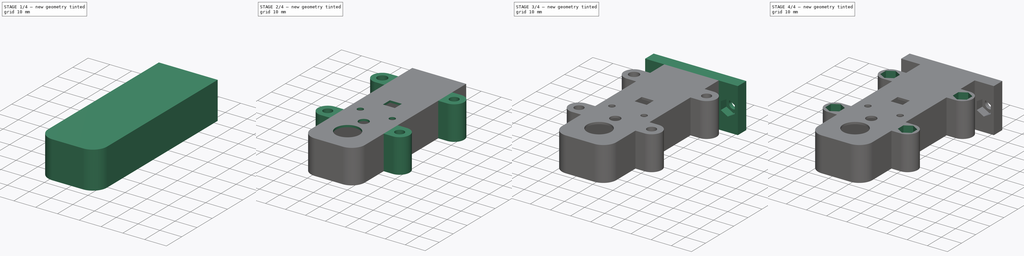
[diagram: build sequence overview — one tinted view per stage of 4, left to right]
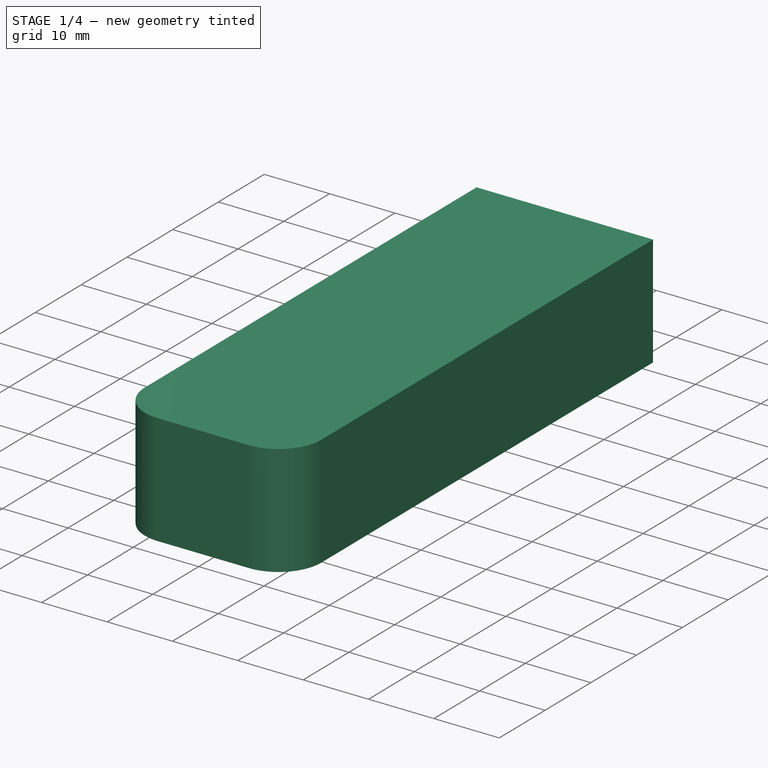
[diagram: stage 1 of 4 — iso view after this stage's code; geometry added in this stage tinted green]
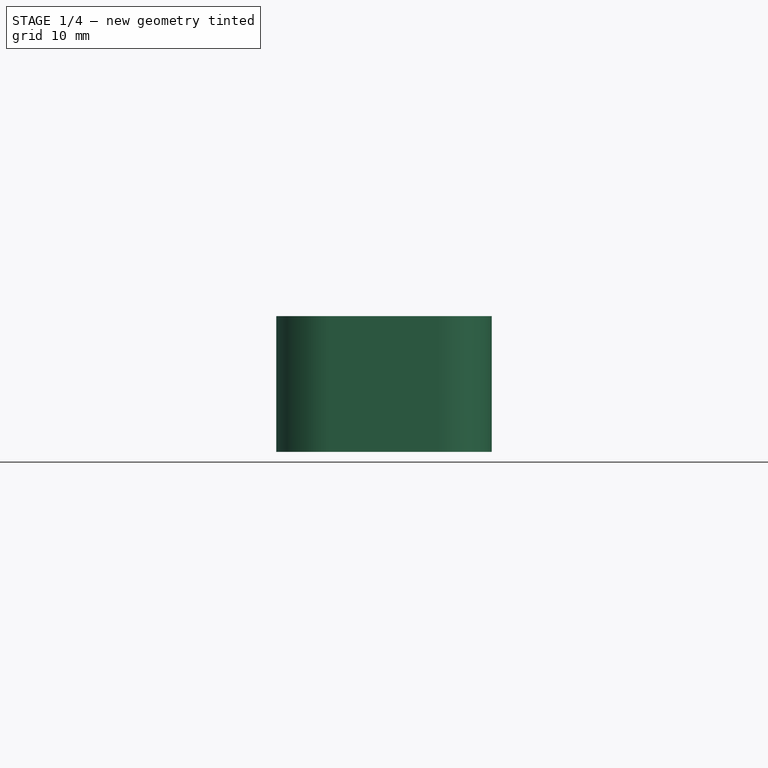
[diagram: stage 1 of 4 — front view after this stage's code; geometry added in this stage tinted green]
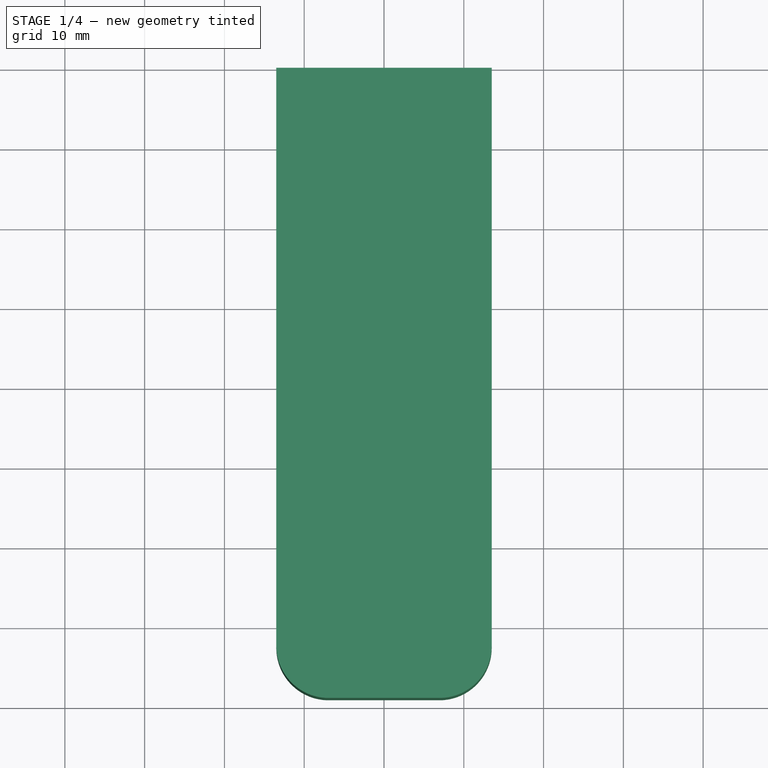
[diagram: stage 1 of 4 — top view after this stage's code; geometry added in this stage tinted green]
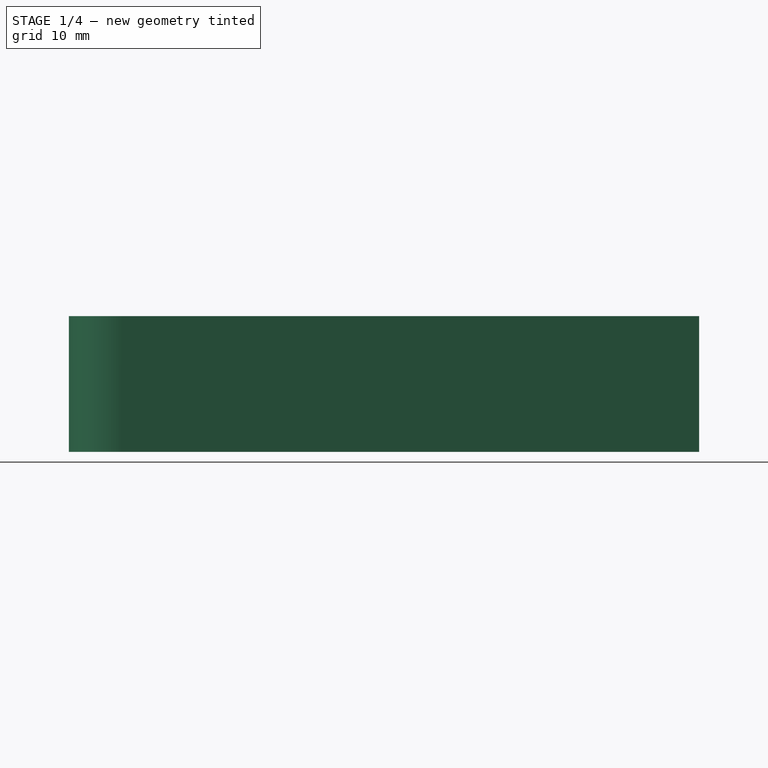
[diagram: stage 1 of 4 — right view after this stage's code; geometry added in this stage tinted green]
FCSTD DOCUMENT  (FreeCAD 1.0R38641 +678 (Git))
Label: box
License: All rights reserved
LicenseURL: https://en.wikipedia.org/wiki/All_rights_reserved
objects: Sketcher::SketchObject×10, PartDesign::Pocket×6, PartDesign::Pad×4, PartDesign::Body×1
note: 51 computed .brp shape members not serialized (recipe doc carries the construction recipe); baked Part::Feature solids carry a one-line shape summary decoded from their .brp

FEATURE [Sketcher::SketchObject] Sketch046
  ArcFitTolerance = 0
  AttachmentSupport = -> [XY_Plane007]
  FullyConstrained = true
  MakeInternals = false
  MapMode = 5
  sketch-geometry (12):
    g0: LineSegment StartX=11.5 StartY=-2 StartZ=0 EndX=11.5 EndY=-72 EndZ=0
    g1: LineSegment StartX=6.5 StartY=-77 StartZ=0 EndX=-6.5 EndY=-77 EndZ=0
    g2: LineSegment StartX=-11.5 StartY=-72 StartZ=0 EndX=-11.5 EndY=-2 EndZ=0
    g3: ArcOfCircle CenterX=-6.5 CenterY=-72 CenterZ=0 NormalX=0 NormalY=0 NormalZ=1 AngleXU=0 Radius=5 StartAngle=3.14159 EndAngle=4.71239
    g4: ArcOfCircle CenterX=6.5 CenterY=-72 CenterZ=0 NormalX=0 NormalY=0 NormalZ=1 AngleXU=0 Radius=5 StartAngle=4.71239 EndAngle=6.28319
    g5: LineSegment StartX=-13.5 StartY=0 StartZ=0 EndX=-13.5 EndY=-72.44 EndZ=0
    g6: LineSegment StartX=-6.94 StartY=-79 StartZ=0 EndX=6.94 EndY=-79 EndZ=0
    g7: LineSegment StartX=13.5 StartY=-72.44 StartZ=0 EndX=13.5 EndY=0 EndZ=0
    g8: ArcOfCircle CenterX=-6.94 CenterY=-72.44 CenterZ=0 NormalX=0 NormalY=0 NormalZ=1 AngleXU=0 Radius=6.56 StartAngle=3.14159 EndAngle=4.71239
    g9: ArcOfCircle CenterX=6.94 CenterY=-72.44 CenterZ=0 NormalX=0 NormalY=0 NormalZ=1 AngleXU=0 Radius=6.56 StartAngle=4.71239 EndAngle=6.28319
    g10: LineSegment StartX=-11.5 StartY=-2 StartZ=0 EndX=11.5 EndY=-2 EndZ=0
    g11: LineSegment StartX=13.5 StartY=0 StartZ=0 EndX=-13.5 EndY=0 EndZ=0
  constraints (32):
    c: Horizontal(g1)
    c: Vertical(g0)
    c: Vertical(g2)
    c: Distance(g-1,g2) = 11.5
    c: Tangent(g1,g3) = 1.5708
    c: Tangent(g2,g3) = 1.5708
    c: Distance(g-1,g1) = 77
    c: Tangent(g0,g4) = 1.5708
    c: Tangent(g1,g4) = 1.5708
    c: Radius(g4) = 5
    c: Equal(g4,g3)
    c: PointOnObject(g5,g-1)
    c: Vertical(g5)
    c: Horizontal(g6)
    c: PointOnObject(g7,g-1)
    c: Vertical(g7)
    c: Tangent(g5,g8) = -1.5708
    c: Tangent(g6,g8) = -1.5708
    c: Radius(g8) = 6.56
    c: Tangent(g7,g9) = -1.5708
    c: Tangent(g6,g9) = -1.5708
    c: Equal(g8,g9)
    c: Distance(g-1,g6) = 79
    c: Horizontal(g10)
    c: Coincident(g2,g10)
    c: Coincident(g0,g10)
    c: DistanceX(g10,g10) = 23
    c: Distance(g-1,g10) = 2
    c: Distance(g7,g5) = 27
    c: Distance(g2,g5) = 2
    c: Coincident(g7,g11)
    c: Coincident(g5,g11)
FEATURE [PartDesign::Pad] Pad018
  Direction = (0,0,1)
  Length = 16
  Length2 = 10
  Profile = -> Sketch046
  ReferenceAxis = -> Sketch046 [N_Axis]
  Suppressed = false
  Type = 0
FEATURE [Sketcher::SketchObject] Sketch047
  ArcFitTolerance = 0
  AttachmentSupport = -> [Pad018]
  FullyConstrained = true
  MakeInternals = false
  MapMode = 5
  Placement = pos=(0,0,16) rot=(0,0,1;0rad)
  sketch-geometry (6):
    g0: LineSegment StartX=-13.5 StartY=0 StartZ=0 EndX=13.5 EndY=0 EndZ=0
    g1: LineSegment StartX=13.5 StartY=0 StartZ=0 EndX=13.5 EndY=-72.44 EndZ=0
    g2: LineSegment StartX=6.94 StartY=-79 StartZ=0 EndX=-6.94 EndY=-79 EndZ=0
    g3: LineSegment StartX=-13.5 StartY=-72.44 StartZ=0 EndX=-13.5 EndY=0 EndZ=0
    g4: ArcOfCircle CenterX=-6.94 CenterY=-72.44 CenterZ=0 NormalX=0 NormalY=0 NormalZ=1 AngleXU=0 Radius=6.56 StartAngle=3.14159 EndAngle=4.71239
    g5: ArcOfCircle CenterX=6.94 CenterY=-72.44 CenterZ=0 NormalX=0 NormalY=0 NormalZ=1 AngleXU=0 Radius=6.56 StartAngle=4.71239 EndAngle=6.28319
  constraints (16):
    c: Coincident(g0,g1)
    c: Coincident(g3,g0)
    c: Horizontal(g0)
    c: Horizontal(g2)
    c: Vertical(g1)
    c: Vertical(g3)
    c: PointOnObject(g0,g-1)
    c: DistanceX(g0,g0) = 27
    c: Distance(g-1,g3) = 13.5
    c: Distance(g-1,g2) = 79
    c: Tangent(g3,g4) = 1.5708
    c: Tangent(g2,g4) = 1.5708
    c: Radius(g4) = 6.56
    c: Tangent(g1,g5) = 1.5708
    c: Tangent(g2,g5) = 1.5708
    c: Equal(g4,g5)
FEATURE [PartDesign::Pad] Pad019
  BaseFeature = -> Pad018
  Direction = (0,0,1)
  Length = 1
  Length2 = 10
  Profile = -> Sketch047
  ReferenceAxis = -> Sketch047 [N_Axis]
  Suppressed = false
  Type = 0
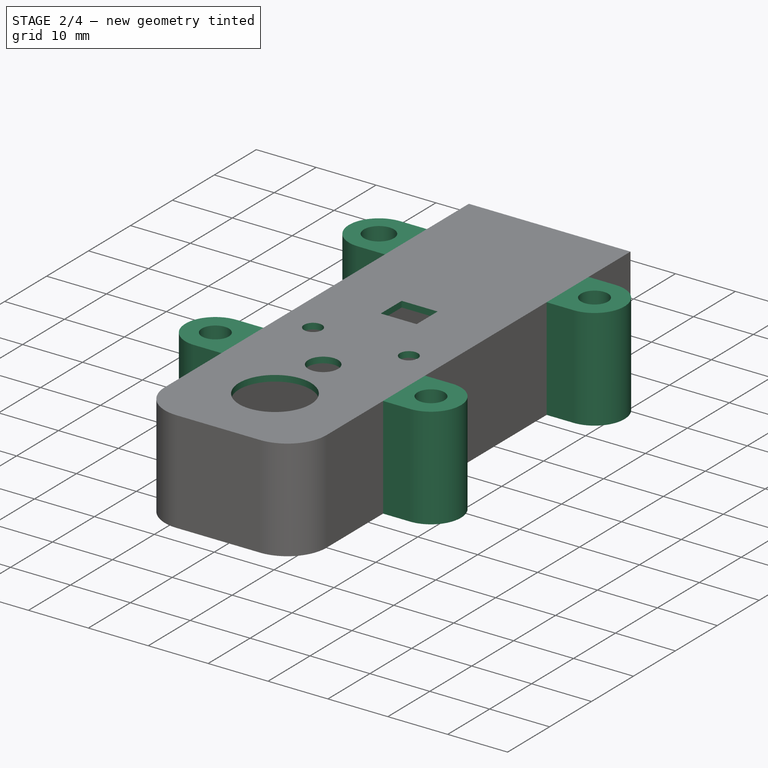
[diagram: stage 2 of 4 — iso view after this stage's code; geometry added in this stage tinted green]
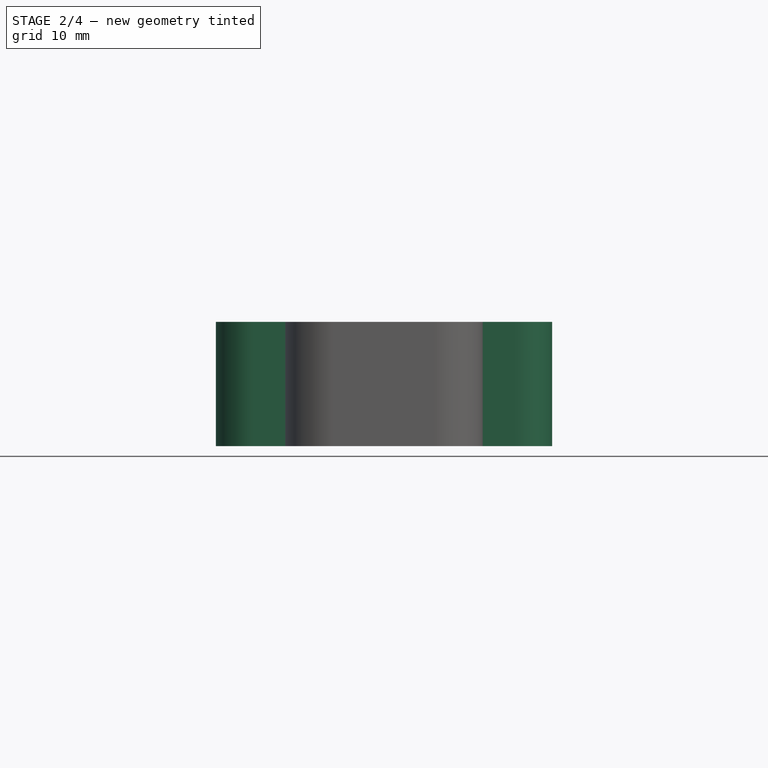
[diagram: stage 2 of 4 — front view after this stage's code; geometry added in this stage tinted green]
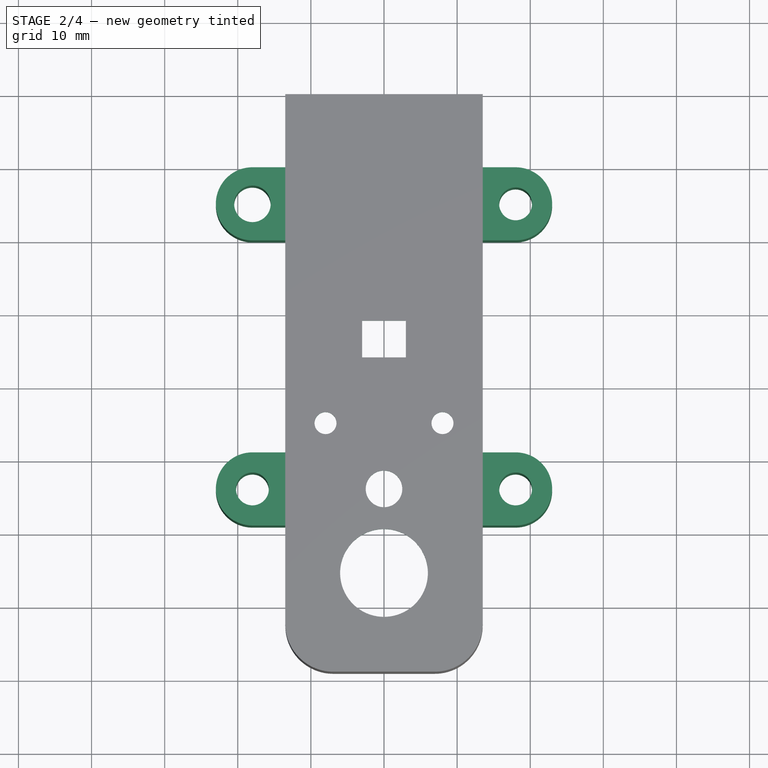
[diagram: stage 2 of 4 — top view after this stage's code; geometry added in this stage tinted green]
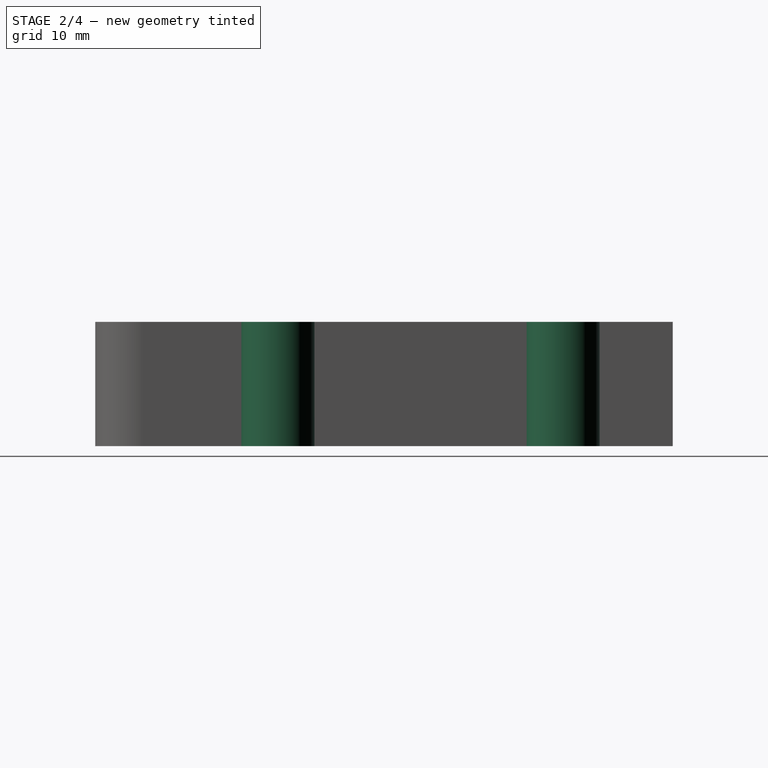
[diagram: stage 2 of 4 — right view after this stage's code; geometry added in this stage tinted green]
FEATURE [Sketcher::SketchObject] Sketch049
  ArcFitTolerance = 0
  FullyConstrained = true
  MakeInternals = false
  MapMode = 5
  Placement = pos=(0,0,17) rot=(0,0,1;0rad)
  sketch-geometry (3):
    g0: Circle CenterX=0 CenterY=-65.5 CenterZ=0 NormalX=0 NormalY=0 NormalZ=1 AngleXU=0 Radius=6
    g1: Circle CenterX=8 CenterY=-45 CenterZ=0 NormalX=0 NormalY=0 NormalZ=1 AngleXU=0 Radius=1.5
    g2: Circle CenterX=-8 CenterY=-45 CenterZ=0 NormalX=0 NormalY=0 NormalZ=1 AngleXU=0 Radius=1.5
  constraints (9):
    c: PointOnObject(g0,g-2)
    c: Diameter(g0) = 12
    c: DistanceY(g-1,g0) = -65.5
    c: Diameter(g1) = 3
    c: DistanceX(g-2,g2) = -8
    c: DistanceX(g-2,g1) = 8
    c: DistanceY(g-1,g1) = -45
    c: Equal(g1,g2)
    c: DistanceY(g-1,g2) = -45
FEATURE [PartDesign::Pocket] Pocket012
  BaseFeature = -> Pad019
  Direction = (0,0,-1)
  Length = 5
  Length2 = 5
  Profile = -> Sketch049
  ReferenceAxis = -> Sketch049 [N_Axis]
  Suppressed = false
  Type = 0
FEATURE [Sketcher::SketchObject] Sketch050
  ArcFitTolerance = 0
  AttachmentSupport = -> [Pocket012]
  FullyConstrained = true
  MakeInternals = false
  MapMode = 5
  Placement = pos=(0,0,16) rot=(1,0,0;3.14159rad)
  sketch-geometry (5):
    g0: LineSegment StartX=-3 StartY=36 StartZ=0 EndX=3 EndY=36 EndZ=0
    g1: LineSegment StartX=3 StartY=36 StartZ=0 EndX=3 EndY=31 EndZ=0
    g2: LineSegment StartX=3 StartY=31 StartZ=0 EndX=-3 EndY=31 EndZ=0
    g3: LineSegment StartX=-3 StartY=31 StartZ=0 EndX=-3 EndY=36 EndZ=0
    g4: Circle CenterX=0 CenterY=54 CenterZ=0 NormalX=0 NormalY=0 NormalZ=1 AngleXU=0 Radius=2.5
  constraints (15):
    c: Coincident(g0,g1)
    c: Coincident(g1,g2)
    c: Coincident(g2,g3)
    c: Coincident(g3,g0)
    c: Horizontal(g0)
    c: Horizontal(g2)
    c: Vertical(g1)
    c: Vertical(g3)
    c: PointOnObject(g4,g-2)
    c: Diameter(g4) = 5
    c: DistanceX(g0,g0) = 6
    c: DistanceY(g1,g1) = 5
    c: Distance(g-1,g0) = 36
    c: Distance(g-1,g3) = 3
    c: DistanceY(g-1,g4) = 54
FEATURE [PartDesign::Pocket] Pocket013
  BaseFeature = -> Pocket012
  Direction = (0,0,1)
  Length = 2
  Length2 = 5
  Profile = -> Sketch050
  ReferenceAxis = -> Sketch050 [N_Axis]
  Suppressed = false
  Type = 0
FEATURE [Sketcher::SketchObject] Sketch051
  ArcFitTolerance = 0
  AttachmentSupport = -> [Pocket013]
  FullyConstrained = true
  MakeInternals = false
  MapMode = 5
  Placement = pos=(0,0,17) rot=(0,0,1;0rad)
  sketch-geometry (20):
    g0: LineSegment StartX=-13 StartY=-49 StartZ=0 EndX=-13 EndY=-59 EndZ=0
    g1: LineSegment StartX=-13 StartY=-59 StartZ=0 EndX=-18 EndY=-59 EndZ=0
    g2: LineSegment StartX=-13 StartY=-49 StartZ=0 EndX=-18 EndY=-49 EndZ=0
    g3: ArcOfCircle CenterX=-18 CenterY=-54 CenterZ=0 NormalX=0 NormalY=0 NormalZ=1 AngleXU=0 Radius=5 StartAngle=1.5708 EndAngle=4.71239
    g4: LineSegment StartX=13 StartY=-49 StartZ=0 EndX=13 EndY=-59 EndZ=0
    g5: LineSegment StartX=13 StartY=-59 StartZ=0 EndX=18 EndY=-59 EndZ=0
    g6: LineSegment StartX=13 StartY=-49 StartZ=0 EndX=18 EndY=-49 EndZ=0
    g7: ArcOfCircle CenterX=18 CenterY=-54 CenterZ=0 NormalX=0 NormalY=0 NormalZ=1 AngleXU=0 Radius=5 StartAngle=4.71239 EndAngle=7.85398
    g8: Circle CenterX=-18 CenterY=-54 CenterZ=0 NormalX=0 NormalY=0 NormalZ=1 AngleXU=0 Radius=2.25
    g9: Circle CenterX=18 CenterY=-54 CenterZ=0 NormalX=0 NormalY=0 NormalZ=1 AngleXU=0 Radius=2.25
    g10: Circle CenterX=18 CenterY=-15 CenterZ=0 NormalX=0 NormalY=0 NormalZ=1 AngleXU=0 Radius=2.25
    g11: LineSegment StartX=13 StartY=-10 StartZ=0 EndX=13 EndY=-20 EndZ=0
    g12: LineSegment StartX=13 StartY=-10 StartZ=0 EndX=18 EndY=-10 EndZ=0
    g13: LineSegment StartX=13 StartY=-20 StartZ=0 EndX=18 EndY=-20 EndZ=0
    g14: ArcOfCircle CenterX=18 CenterY=-15 CenterZ=0 NormalX=0 NormalY=0 NormalZ=1 AngleXU=0 Radius=5 StartAngle=4.71239 EndAngle=7.85398
    g15: Circle CenterX=-18 CenterY=-15 CenterZ=0 NormalX=0 NormalY=0 NormalZ=1 AngleXU=0 Radius=2.5
    g16: LineSegment StartX=-13 StartY=-10 StartZ=0 EndX=-13 EndY=-20 EndZ=0
    g17: LineSegment StartX=-13 StartY=-20 StartZ=0 EndX=-18 EndY=-20 EndZ=0
    g18: LineSegment StartX=-13 StartY=-10 StartZ=0 EndX=-18 EndY=-10 EndZ=0
    g19: ArcOfCircle CenterX=-18 CenterY=-15 CenterZ=0 NormalX=0 NormalY=0 NormalZ=1 AngleXU=0 Radius=5 StartAngle=1.5708 EndAngle=4.71239
  constraints (60):
    c: Vertical(g0)
    c: Coincident(g1,g0)
    c: Horizontal(g1)
    c: Coincident(g2,g0)
    c: Horizontal(g2)
    c: Coincident(g3,g2)
    c: Coincident(g3,g1)
    c: Vertical(g4)
    c: Coincident(g5,g4)
    c: Horizontal(g5)
    c: Coincident(g6,g4)
    c: Horizontal(g6)
    c: Coincident(g7,g6)
    c: Coincident(g7,g5)
    c: DistanceX(g2,g2) = 5
    c: Equal(g2,g1)
    c: Equal(g1,g6)
    c: Equal(g6,g5)
    c: DistanceY(g0,g0) = 10
    c: Equal(g0,g4)
    c: Radius(g3) = 5
    c: Equal(g3,g7)
    c: Distance(g-1,g2) = 49
    c: Distance(g-1,g0) = 13
    c: Distance(g-1,g4) = 13
    c: Distance(g-1,g6) = 49
    c: Coincident(g8,g3)
    c: Diameter(g8) = 4.5
    c: Coincident(g9,g7)
    c: Equal(g9,g8)
    c: Diameter(g10) = 4.5
    c: Vertical(g11)
    c: Coincident(g12,g11)
    c: Horizontal(g12)
    c: Coincident(g13,g11)
    c: Horizontal(g13)
    c: Coincident(g14,g10)
    c: Coincident(g14,g12)
    c: Coincident(g14,g13)
    c: DistanceX(g13,g13) = 5
    c: DistanceY(g11,g11) = 10
    c: Radius(g14) = 5
    c: Distance(g10,g13) = 5
    c: Diameter(g15) = 5
    c: Vertical(g16)
    c: Coincident(g17,g16)
    c: Horizontal(g17)
    c: Coincident(g18,g16)
    c: Horizontal(g18)
    c: Coincident(g19,g15)
    c: Coincident(g19,g18)
    c: Coincident(g19,g17)
    c: DistanceX(g17,g17) = 5
    c: DistanceY(g16,g16) = 10
    c: Radius(g19) = 5
    c: Distance(g-1,g11) = 13
    c: Distance(g-1,g16) = 13
    c: Distance(g-1,g13) = 20
    c: Distance(g-1,g17) = 20
    c: DistanceX(g18,g18) = 5
FEATURE [PartDesign::Pad] Pad020
  BaseFeature = -> Pocket013
  Direction = (0,0,1)
  Length = 17
  Length2 = 10
  Profile = -> Sketch051
  ReferenceAxis = -> Sketch051 [N_Axis]
  Reversed = true
  Suppressed = false
  Type = 0
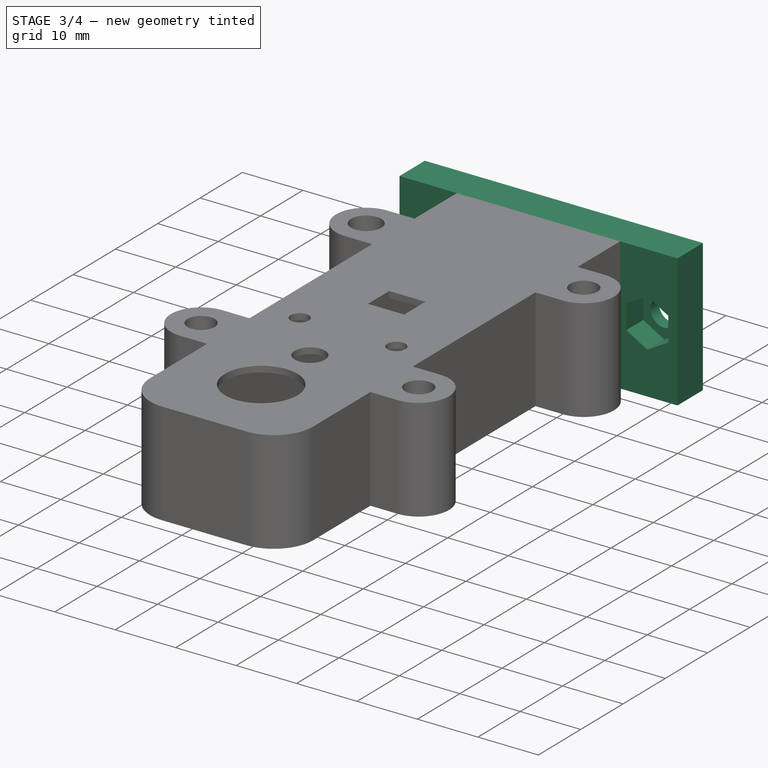
[diagram: stage 3 of 4 — iso view after this stage's code; geometry added in this stage tinted green]
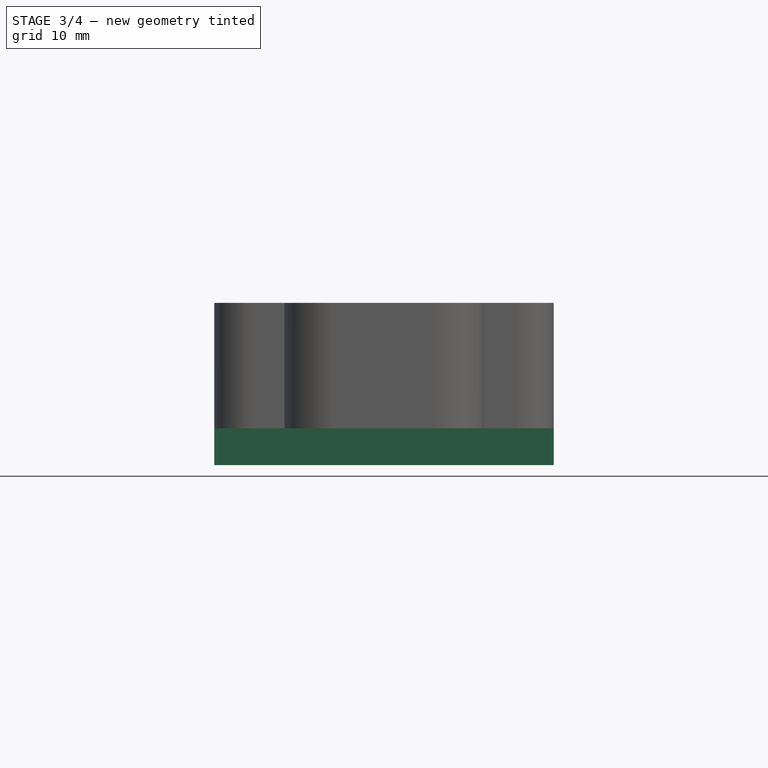
[diagram: stage 3 of 4 — front view after this stage's code; geometry added in this stage tinted green]
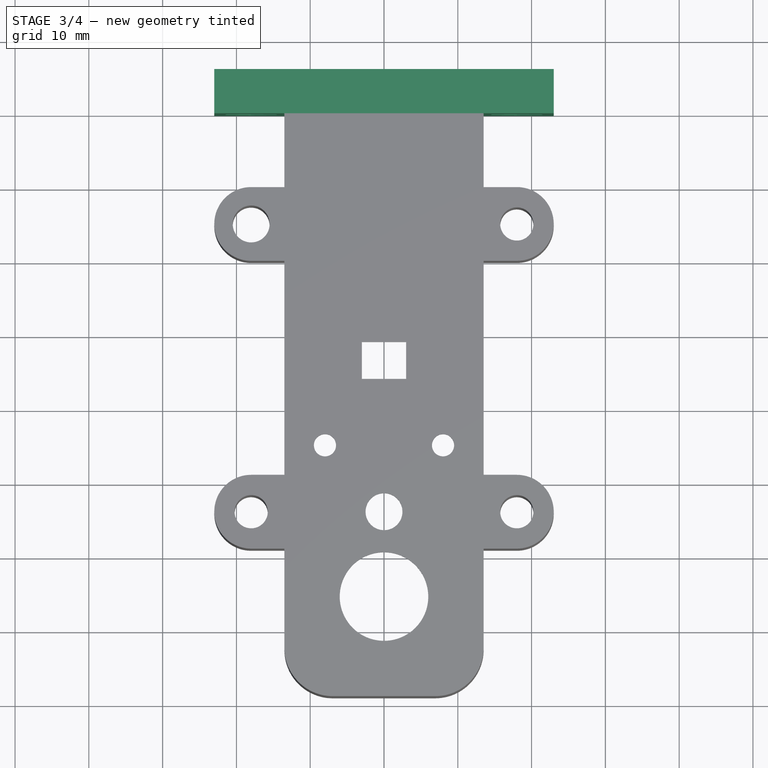
[diagram: stage 3 of 4 — top view after this stage's code; geometry added in this stage tinted green]
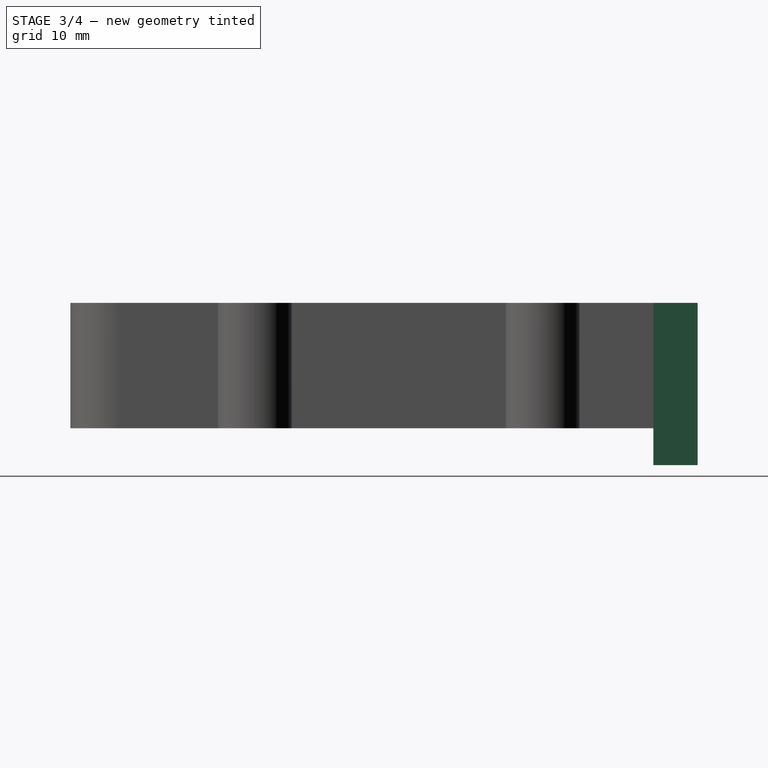
[diagram: stage 3 of 4 — right view after this stage's code; geometry added in this stage tinted green]
FEATURE [Sketcher::SketchObject] Sketch053
  ArcFitTolerance = 0
  AttachmentSupport = -> [Pad020]
  FullyConstrained = true
  MakeInternals = false
  MapMode = 5
  Placement = pos=(0,0,0) rot=(0,0.707107,0.707107;3.14159rad)
  sketch-geometry (4):
    g0: LineSegment StartX=-23 StartY=17 StartZ=0 EndX=23 EndY=17 EndZ=0
    g1: LineSegment StartX=23 StartY=17 StartZ=0 EndX=23 EndY=-5 EndZ=0
    g2: LineSegment StartX=23 StartY=-5 StartZ=0 EndX=-23 EndY=-5 EndZ=0
    g3: LineSegment StartX=-23 StartY=-5 StartZ=0 EndX=-23 EndY=17 EndZ=0
  constraints (12):
    c: Coincident(g0,g1)
    c: Coincident(g1,g2)
    c: Coincident(g2,g3)
    c: Coincident(g3,g0)
    c: Horizontal(g0)
    c: Horizontal(g2)
    c: Vertical(g1)
    c: Vertical(g3)
    c: DistanceY(g3,g3) = 22
    c: DistanceX(g0,g0) = 46
    c: Distance(g-1,g3) = 23
    c: Distance(g-1,g0) = 17
FEATURE [PartDesign::Pad] Pad021
  BaseFeature = -> Pad020
  Direction = (0,1,-2e-16)
  Length = 6
  Length2 = 10
  Profile = -> Sketch053
  ReferenceAxis = -> Sketch053 [N_Axis]
  Suppressed = false
  Type = 0
FEATURE [Sketcher::SketchObject] Sketch054
  ArcFitTolerance = 0
  AttachmentSupport = -> [Pad021]
  FullyConstrained = true
  MakeInternals = false
  MapMode = 5
  Placement = pos=(0,6,0) rot=(0,0.707107,0.707107;3.14159rad)
  sketch-geometry (2):
    g0: Circle CenterX=-18 CenterY=6 CenterZ=0 NormalX=0 NormalY=0 NormalZ=1 AngleXU=0 Radius=2.25
    g1: Circle CenterX=18 CenterY=6 CenterZ=0 NormalX=0 NormalY=0 NormalZ=1 AngleXU=0 Radius=2.25
  constraints (6):
    c: Diameter(g0) = 4.5
    c: DistanceY(g-1,g0) = 6
    c: DistanceX(g-2,g0) = -18
    c: Diameter(g1) = 4.5
    c: DistanceY(g-1,g1) = 6
    c: DistanceX(g-2,g1) = 18
FEATURE [PartDesign::Pocket] Pocket015
  BaseFeature = -> Pad021
  Direction = (0,-1,2e-16)
  Length = 8
  Length2 = 5
  Profile = -> Sketch054
  ReferenceAxis = -> Sketch054 [N_Axis]
  Suppressed = false
  Type = 0
FEATURE [Sketcher::SketchObject] Sketch055
  ArcFitTolerance = 0
  AttachmentSupport = -> [Pocket015]
  FullyConstrained = true
  MakeInternals = false
  MapMode = 5
  Placement = pos=(0,1.3e-15,0) rot=(1,0,0;1.5708rad)
  sketch-geometry (14):
    g0: LineSegment StartX=-14.5359 StartY=4 StartZ=0 EndX=-14.5359 EndY=8 EndZ=0
    g1: LineSegment StartX=-14.5359 StartY=8 StartZ=0 EndX=-18 EndY=10 EndZ=0
    g2: LineSegment StartX=-18 StartY=10 StartZ=0 EndX=-21.4641 EndY=8 EndZ=0
    g3: LineSegment StartX=-21.4641 StartY=8 StartZ=0 EndX=-21.4641 EndY=4 EndZ=0
    g4: LineSegment StartX=-21.4641 StartY=4 StartZ=0 EndX=-18 EndY=2 EndZ=0
    g5: LineSegment StartX=-18 StartY=2 StartZ=0 EndX=-14.5359 EndY=4 EndZ=0
    g6: Circle [constr] CenterX=-18 CenterY=6 CenterZ=0 NormalX=0 NormalY=0 NormalZ=1 AngleXU=0 Radius=4
    g7: LineSegment StartX=21.4641 StartY=4 StartZ=0 EndX=21.4641 EndY=8 EndZ=0
    g8: LineSegment StartX=21.4641 StartY=8 StartZ=0 EndX=18 EndY=10 EndZ=0
    g9: LineSegment StartX=18 StartY=10 StartZ=0 EndX=14.5359 EndY=8 EndZ=0
    g10: LineSegment StartX=14.5359 StartY=8 StartZ=0 EndX=14.5359 EndY=4 EndZ=0
    g11: LineSegment StartX=14.5359 StartY=4 StartZ=0 EndX=18 EndY=2 EndZ=0
    g12: LineSegment StartX=18 StartY=2 StartZ=0 EndX=21.4641 EndY=4 EndZ=0
    g13: Circle [constr] CenterX=18 CenterY=6 CenterZ=0 NormalX=0 NormalY=0 NormalZ=1 AngleXU=0 Radius=4
  constraints (34):
    c: Coincident(g0,g1)
    c: Coincident(g1,g2)
    c: Coincident(g2,g3)
    c: Coincident(g3,g4)
    c: Coincident(g4,g5)
    c: Coincident(g5,g0)
    c: Equal(g0, g1-g5) x5
    c: PointOnObject(g0,g6)
    c: PointOnObject(g1,g6)
    c: PointOnObject(g2,g6)
    c: PointOnObject(g3,g6)
    c: PointOnObject(g4,g6)
    c: PointOnObject(g5,g6)
    c: Coincident(g7,g8)
    c: Coincident(g8,g9)
    c: Coincident(g9,g10)
    c: Coincident(g10,g11)
    c: Coincident(g11,g12)
    c: Coincident(g12,g7)
    c: Equal(g7, g8-g12) x5
    c: PointOnObject(g7,g13)
    c: PointOnObject(g8,g13)
    c: PointOnObject(g9,g13)
    c: PointOnObject(g10,g13)
    c: PointOnObject(g11,g13)
    c: PointOnObject(g12,g13)
    c: Vertical(g7)
    c: Vertical(g3)
    c: Diameter(g6) = 8
    c: Diameter(g13) = 8
    c: DistanceX(g-2,g6) = -18
    c: DistanceY(g-1,g6) = 6
    c: DistanceX(g-2,g13) = 18
    c: DistanceY(g-1,g13) = 6
FEATURE [PartDesign::Pocket] Pocket016
  BaseFeature = -> Pocket015
  Direction = (0,1,-2e-16)
  Length = 4
  Length2 = 5
  Profile = -> Sketch055
  ReferenceAxis = -> Sketch055 [N_Axis]
  Suppressed = false
  Type = 0
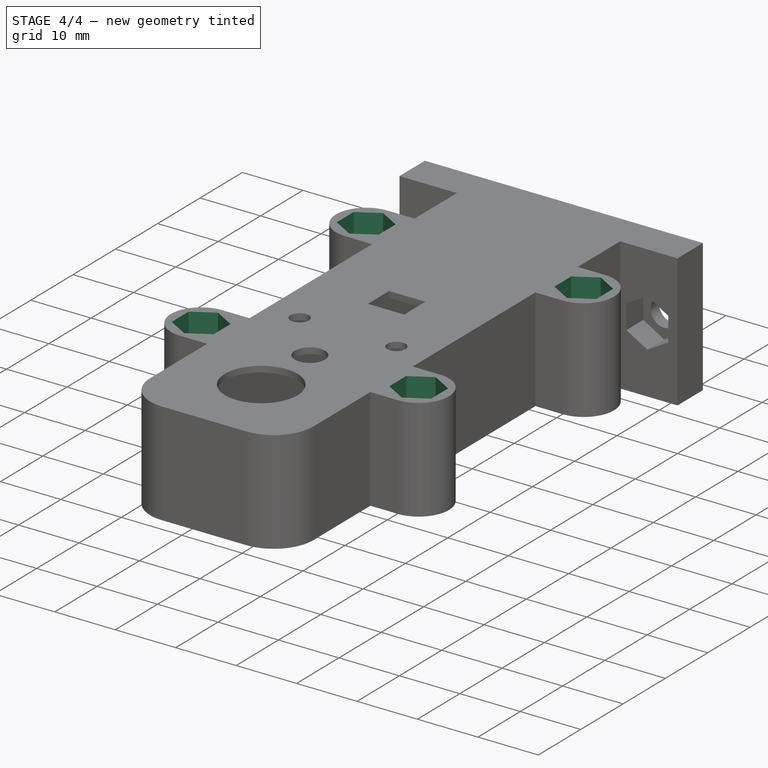
[diagram: stage 4 of 4 — iso view after this stage's code; geometry added in this stage tinted green]
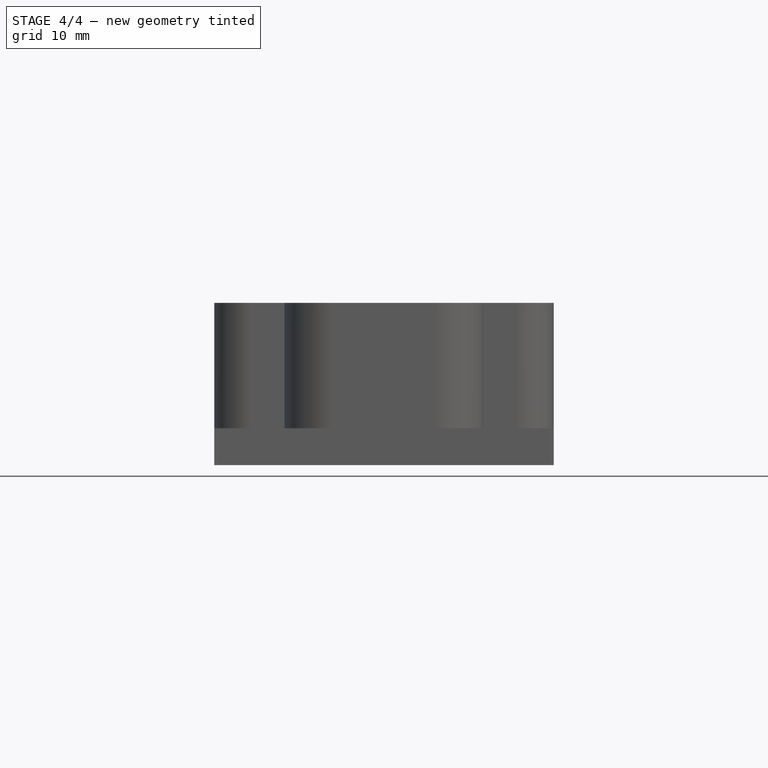
[diagram: stage 4 of 4 — front view after this stage's code; geometry added in this stage tinted green]
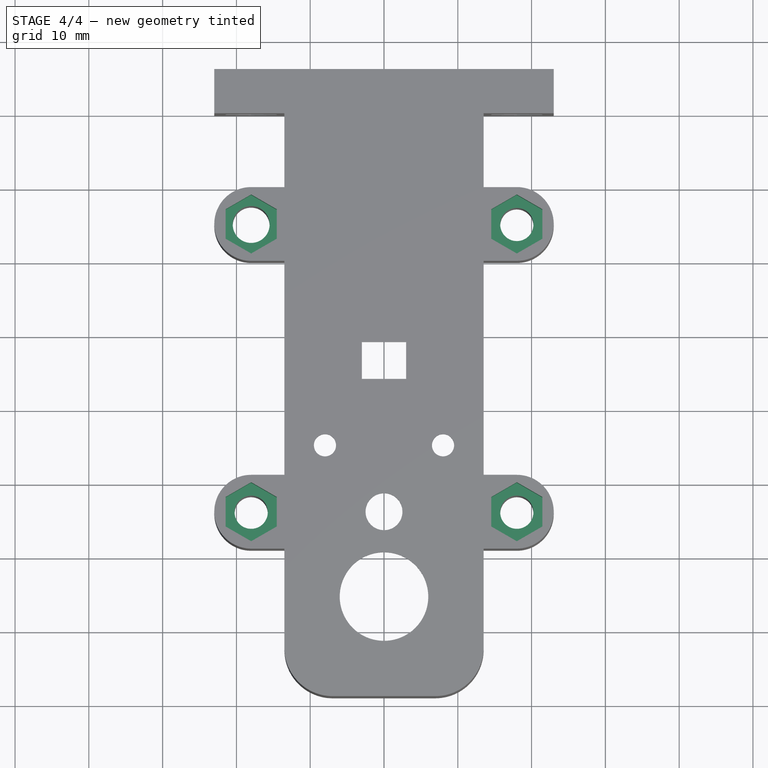
[diagram: stage 4 of 4 — top view after this stage's code; geometry added in this stage tinted green]
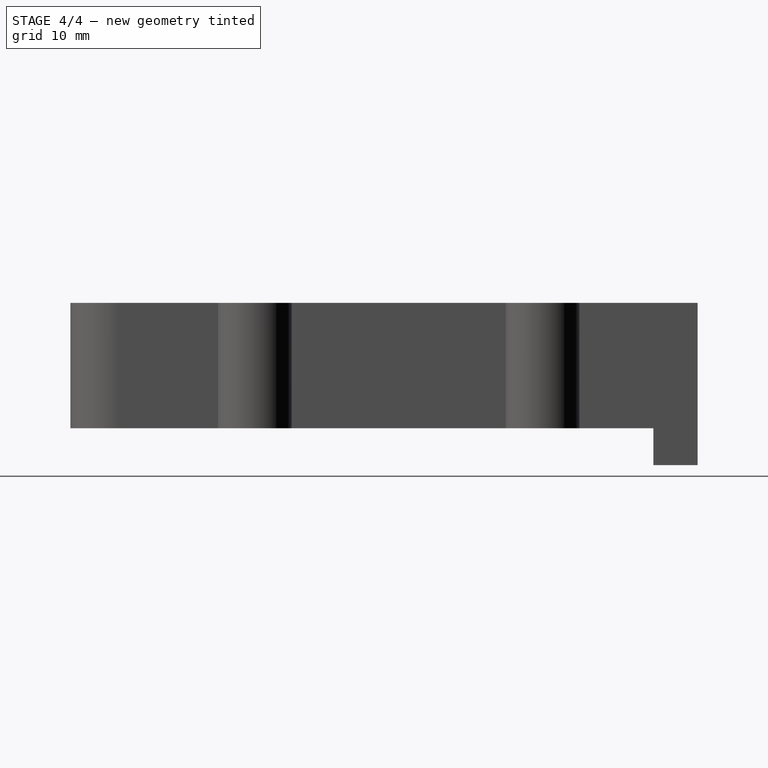
[diagram: stage 4 of 4 — right view after this stage's code; geometry added in this stage tinted green]
FEATURE [Sketcher::SketchObject] Sketch065
  ArcFitTolerance = 0
  AttachmentSupport = -> [Pocket016]
  FullyConstrained = true
  MakeInternals = false
  MapMode = 5
  Placement = pos=(0,6,0) rot=(0,0.707107,0.707107;3.14159rad)
  sketch-geometry (4):
    g0: LineSegment StartX=-7 StartY=9 StartZ=0 EndX=7 EndY=9 EndZ=0
    g1: LineSegment StartX=7 StartY=9 StartZ=0 EndX=7 EndY=3 EndZ=0
    g2: LineSegment StartX=7 StartY=3 StartZ=0 EndX=-7 EndY=3 EndZ=0
    g3: LineSegment StartX=-7 StartY=3 StartZ=0 EndX=-7 EndY=9 EndZ=0
  constraints (12):
    c: Coincident(g0,g1)
    c: Coincident(g1,g2)
    c: Coincident(g2,g3)
    c: Coincident(g3,g0)
    c: Horizontal(g0)
    c: Horizontal(g2)
    c: Vertical(g1)
    c: Vertical(g3)
    c: DistanceY(g1,g1) = 6
    c: DistanceX(g0,g0) = 14
    c: Distance(g-1,g2) = 3
    c: Distance(g-1,g1) = 7
FEATURE [PartDesign::Pocket] Pocket023
  BaseFeature = -> Pocket016
  Direction = (0,-1,2e-16)
  Length = 8
  Length2 = 5
  Profile = -> Sketch065
  ReferenceAxis = -> Sketch065 [N_Axis]
  Suppressed = false
  Type = 0
FEATURE [Sketcher::SketchObject] Sketch056
  ArcFitTolerance = 0
  AttachmentSupport = -> [Pocket023]
  FullyConstrained = true
  MakeInternals = false
  MapMode = 5
  Placement = pos=(0,0,17) rot=(0,0,1;0rad)
  sketch-geometry (28):
    g0: LineSegment StartX=-14.5359 StartY=-56 StartZ=0 EndX=-14.5359 EndY=-52 EndZ=0
    g1: LineSegment StartX=-14.5359 StartY=-52 StartZ=0 EndX=-18 EndY=-50 EndZ=0
    g2: LineSegment StartX=-18 StartY=-50 StartZ=0 EndX=-21.4641 EndY=-52 EndZ=0
    g3: LineSegment StartX=-21.4641 StartY=-52 StartZ=0 EndX=-21.4641 EndY=-56 EndZ=0
    g4: LineSegment StartX=-21.4641 StartY=-56 StartZ=0 EndX=-18 EndY=-58 EndZ=0
    g5: LineSegment StartX=-18 StartY=-58 StartZ=0 EndX=-14.5359 EndY=-56 EndZ=0
    g6: Circle [constr] CenterX=-18 CenterY=-54 CenterZ=0 NormalX=0 NormalY=0 NormalZ=1 AngleXU=0 Radius=4
    g7: LineSegment StartX=21.4641 StartY=-56 StartZ=0 EndX=21.4641 EndY=-52 EndZ=0
    g8: LineSegment StartX=21.4641 StartY=-52 StartZ=0 EndX=18 EndY=-50 EndZ=0
    g9: LineSegment StartX=18 StartY=-50 StartZ=0 EndX=14.5359 EndY=-52 EndZ=0
    g10: LineSegment StartX=14.5359 StartY=-52 StartZ=0 EndX=14.5359 EndY=-56 EndZ=0
    g11: LineSegment StartX=14.5359 StartY=-56 StartZ=0 EndX=18 EndY=-58 EndZ=0
    g12: LineSegment StartX=18 StartY=-58 StartZ=0 EndX=21.4641 EndY=-56 EndZ=0
    g13: Circle [constr] CenterX=18 CenterY=-54 CenterZ=0 NormalX=0 NormalY=0 NormalZ=1 AngleXU=0 Radius=4
    g14: LineSegment StartX=21.4641 StartY=-17 StartZ=0 EndX=21.4641 EndY=-13 EndZ=0
    g15: LineSegment StartX=21.4641 StartY=-13 StartZ=0 EndX=18 EndY=-11 EndZ=0
    g16: LineSegment StartX=18 StartY=-11 StartZ=0 EndX=14.5359 EndY=-13 EndZ=0
    g17: LineSegment StartX=14.5359 StartY=-13 StartZ=0 EndX=14.5359 EndY=-17 EndZ=0
    g18: LineSegment StartX=14.5359 StartY=-17 StartZ=0 EndX=18 EndY=-19 EndZ=0
    g19: LineSegment StartX=18 StartY=-19 StartZ=0 EndX=21.4641 EndY=-17 EndZ=0
    g20: Circle [constr] CenterX=18 CenterY=-15 CenterZ=0 NormalX=0 NormalY=0 NormalZ=1 AngleXU=0 Radius=4
    g21: LineSegment StartX=-14.5359 StartY=-17 StartZ=0 EndX=-14.5359 EndY=-13 EndZ=0
    g22: LineSegment StartX=-14.5359 StartY=-13 StartZ=0 EndX=-18 EndY=-11 EndZ=0
    g23: LineSegment StartX=-18 StartY=-11 StartZ=0 EndX=-21.4641 EndY=-13 EndZ=0
    g24: LineSegment StartX=-21.4641 StartY=-13 StartZ=0 EndX=-21.4641 EndY=-17 EndZ=0
    g25: LineSegment StartX=-21.4641 StartY=-17 StartZ=0 EndX=-18 EndY=-19 EndZ=0
    g26: LineSegment StartX=-18 StartY=-19 StartZ=0 EndX=-14.5359 EndY=-17 EndZ=0
    g27: Circle [constr] CenterX=-18 CenterY=-15 CenterZ=0 NormalX=0 NormalY=0 NormalZ=1 AngleXU=0 Radius=4
  constraints (68):
    c: Coincident(g0,g1)
    c: Coincident(g1,g2)
    c: Coincident(g2,g3)
    c: Coincident(g3,g4)
    c: Coincident(g4,g5)
    c: Coincident(g5,g0)
    c: Equal(g0, g1-g5) x5
    c: PointOnObject(g0,g6)
    c: PointOnObject(g1,g6)
    c: PointOnObject(g2,g6)
    c: PointOnObject(g3,g6)
    c: PointOnObject(g4,g6)
    c: PointOnObject(g5,g6)
    c: Coincident(g7,g8)
    c: Coincident(g8,g9)
    c: Coincident(g9,g10)
    c: Coincident(g10,g11)
    c: Coincident(g11,g12)
    c: Coincident(g12,g7)
    c: Equal(g7, g8-g12) x5
    c: PointOnObject(g7,g13)
    c: PointOnObject(g8,g13)
    c: PointOnObject(g9,g13)
    c: PointOnObject(g10,g13)
    c: PointOnObject(g11,g13)
    c: PointOnObject(g12,g13)
    c: Vertical(g3)
    c: Vertical(g7)
    c: Diameter(g6) = 8
    c: DistanceX(g-2,g6) = -18
    c: DistanceY(g-1,g6) = -54
    c: DistanceX(g-2,g13) = 18
    c: DistanceY(g-1,g13) = -54
    c: Coincident(g14,g15)
    c: Coincident(g15,g16)
    c: Coincident(g16,g17)
    c: Coincident(g17,g18)
    c: Coincident(g18,g19)
    c: Coincident(g19,g14)
    c: Equal(g14, g15-g19) x5
    c: PointOnObject(g14,g20)
    c: PointOnObject(g15,g20)
    c: PointOnObject(g16,g20)
    c: PointOnObject(g17,g20)
    c: PointOnObject(g18,g20)
    c: PointOnObject(g19,g20)
    c: Coincident(g21,g22)
    c: Coincident(g22,g23)
    c: Coincident(g23,g24)
    c: Coincident(g24,g25)
    c: Coincident(g25,g26)
    c: Coincident(g26,g21)
    c: Equal(g21, g22-g26) x5
    c: PointOnObject(g21,g27)
    c: PointOnObject(g22,g27)
    c: PointOnObject(g23,g27)
    c: PointOnObject(g24,g27)
    c: PointOnObject(g25,g27)
    c: PointOnObject(g26,g27)
    c: Vertical(g24)
    c: Vertical(g14)
    c: Equal(g6,g13)
    c: Equal(g13,g20)
    c: Equal(g20,g27)
    c: DistanceX(g-2,g27) = -18
    c: DistanceX(g-2,g20) = 18
    c: DistanceY(g-1,g20) = -15
    c: DistanceY(g-1,g27) = -15
FEATURE [PartDesign::Pocket] Pocket080
  BaseFeature = -> Pocket023
  Direction = (0,0,-1)
  Length = 4
  Length2 = 5
  Profile = -> Sketch056
  ReferenceAxis = -> Sketch056 [N_Axis]
  Suppressed = false
  Type = 0
FEATURE [PartDesign::Body] Body007  label="box"
  AllowCompound = false
  Group = -> [Sketch046,Pad018,Sketch047,Pad019,Sketch049,Pocket012,Sketch050,Pocket013,Sketch051,Pad020,Sketch053,Pad021,Sketch054,Pocket015,Sketch055,Pocket016,Sketch056,Sketch065,Pocket023,Pocket080]
  Origin = -> Origin007
  Placement = pos=(-3e-15,-40,3) rot=(0,1,0;3.14159rad)
  Tip = -> Pocket080
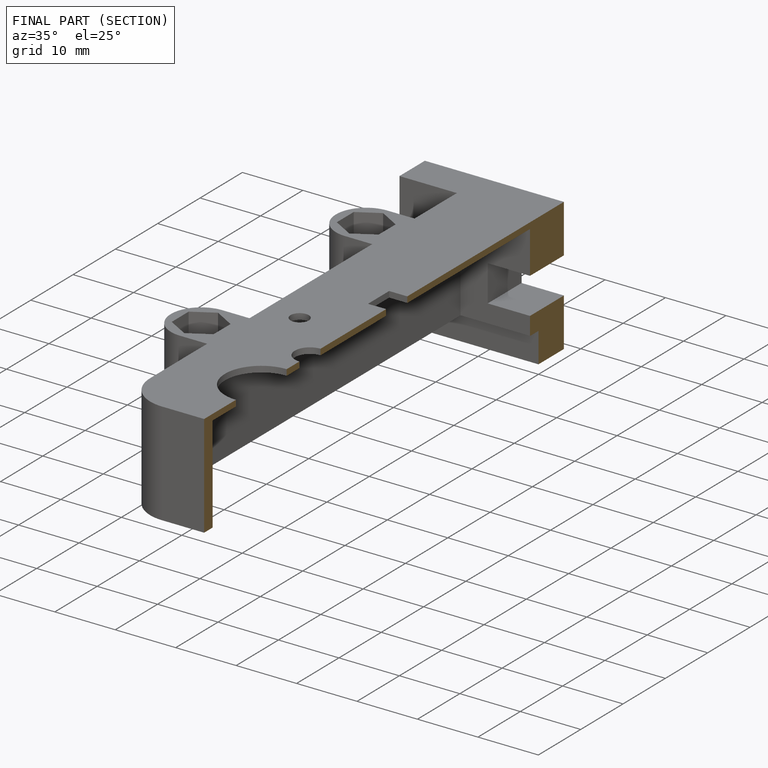
[diagram: finished part — half-section view (interior)]
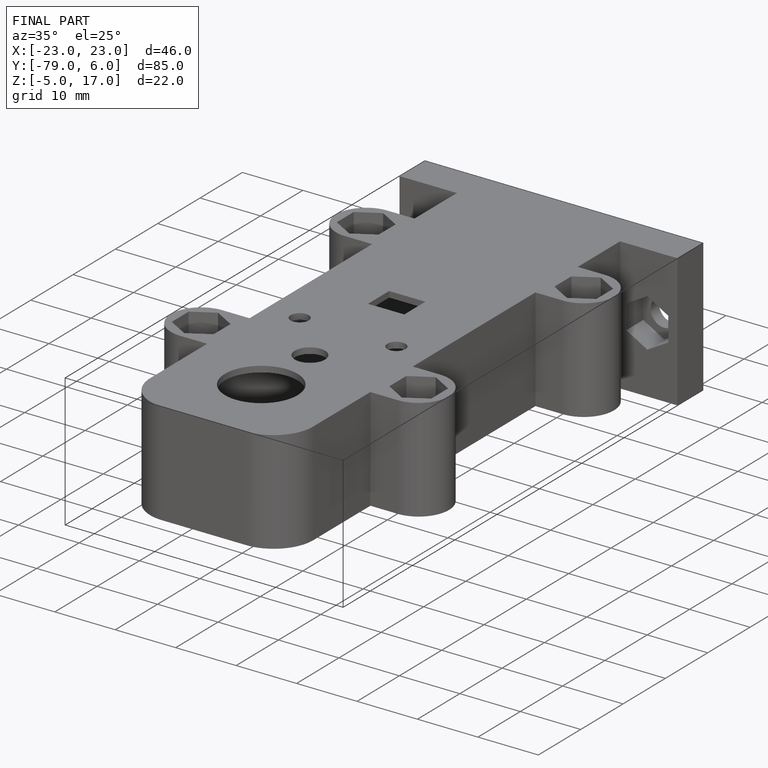
[diagram: finished part — iso view with bounding-box wireframe]
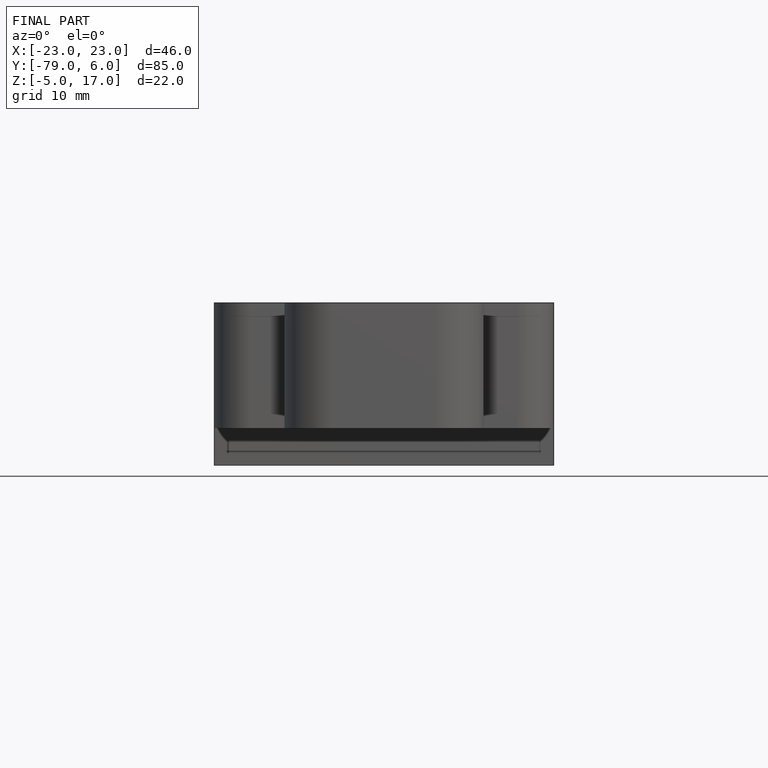
[diagram: finished part — front view with bounding-box wireframe]
